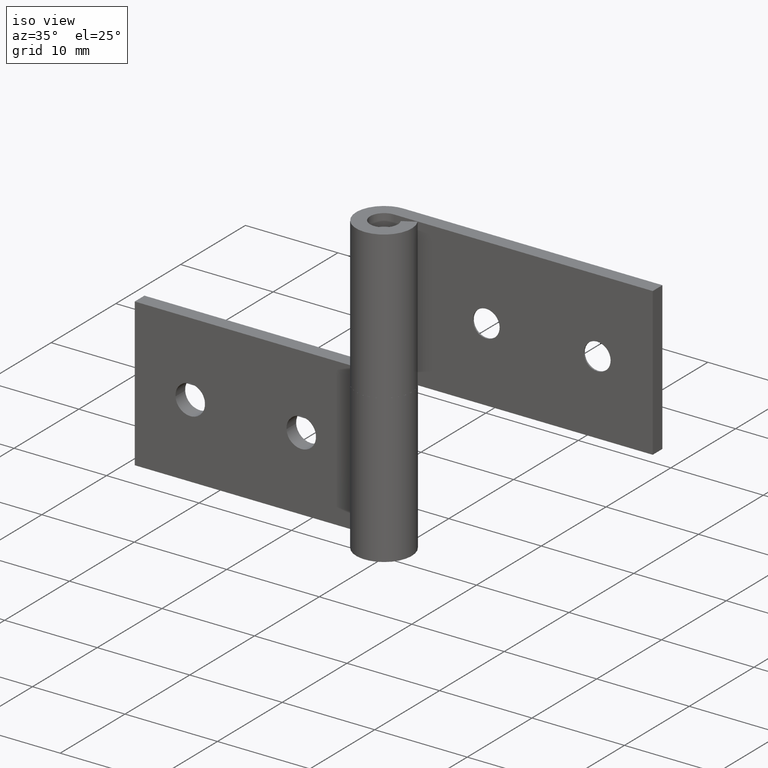
[diagram: clean part render]
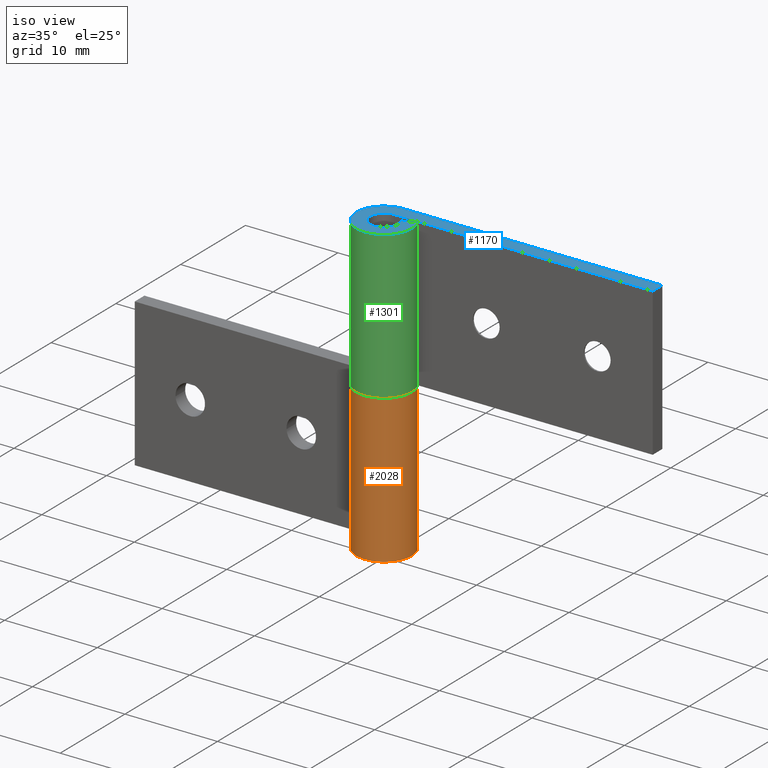
[diagram: same view with three faces highlighted in distinct colors, each labeled with its STEP entity id]
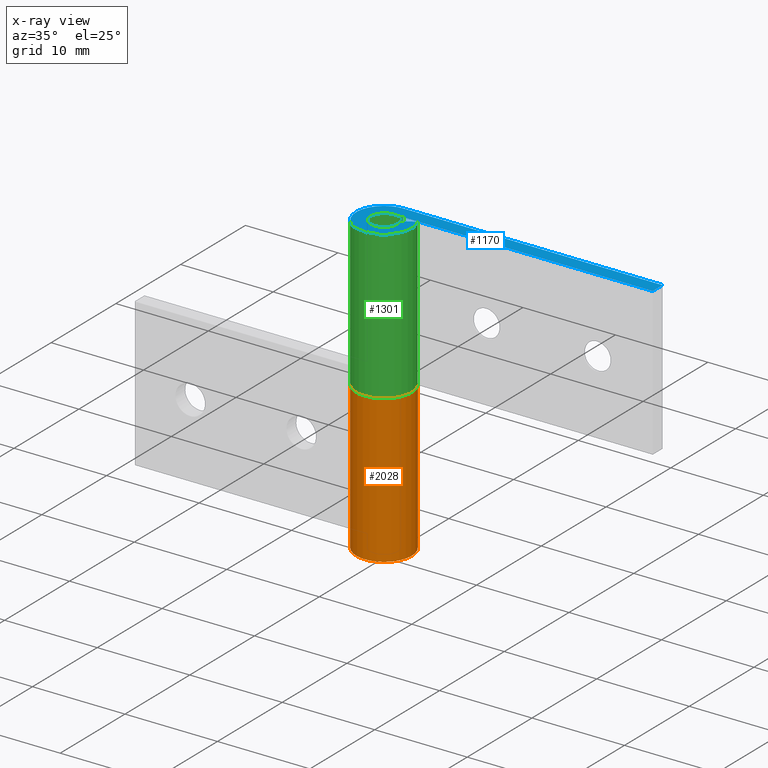
[diagram: x-ray of the same camera — body ghosted, the three highlighted faces saturated]
A machine part, iso view with three faces highlighted in distinct colors.
The next image is the same camera in x-ray (body ghosted, the three faces saturated) — at least one of them is partly hidden behind the body in this view.
Their STEP definitions:

[orange] entity #2028 — the highlighted face is a freeform B-spline surface patch.
#1851=CARTESIAN_POINT('',(-2.626309197333780,1.450000000000000,16.0));
#1852=VERTEX_POINT('',#1851);
#1858=CARTESIAN_POINT('',(1.836910E-016,3.0,16.0));
#1859=VERTEX_POINT('',#1858);
#1860=CARTESIAN_POINT('',(0.0,3.0,16.0));
#1861=CARTESIAN_POINT('',(2.290598042424808,3.0,16.000000000000004));
#1862=CARTESIAN_POINT('',(2.894028888043301,0.790314364775724,16.0));
#1863=CARTESIAN_POINT('',(3.497459733661794,-1.419371270448550,16.000000000000004));
#1864=CARTESIAN_POINT('',(1.524795068197693,-2.583602136552761,16.0));
#1865=CARTESIAN_POINT('',(-0.447869597266408,-3.747833002656974,16.000000000000004));
#1866=CARTESIAN_POINT('',(-2.090650590886088,-2.151552952364328,16.0));
#1867=CARTESIAN_POINT('',(-3.733431584505768,-0.555272902071681,16.000000000000004));
#1868=CARTESIAN_POINT('',(-2.626309197333781,1.449999999999996,16.0));
#1876=(BOUNDED_CURVE()B_SPLINE_CURVE(2,(#1860,#1861,#1862,#1863,#1864,#1865,#1866,#1867,#1868),.UNSPECIFIED.,.F.,.U.)B_SPLINE_CURVE_WITH_KNOTS((3,2,2,2,3),(0.0,0.250000000000000,0.500000000000000,0.750000000000000,1.0),.UNSPECIFIED.)CURVE()GEOMETRIC_REPRESENTATION_ITEM()RATIONAL_B_SPLINE_CURVE((1.0,0.794807562115481,1.0,0.794807562115481,1.0,0.794807562115481,1.0,0.794807562115481,1.0))REPRESENTATION_ITEM(''));
#1877=EDGE_CURVE('',#1859,#1852,#1876,.T.);
#1915=CARTESIAN_POINT('',(1.836910E-016,3.0,0.0));
#1916=VERTEX_POINT('',#1915);
#1922=CARTESIAN_POINT('',(-2.626309197333780,1.450000000000000,0.0));
#1923=VERTEX_POINT('',#1922);
#1924=CARTESIAN_POINT('',(0.0,3.0,0.0));
#1925=CARTESIAN_POINT('',(2.290598042424808,3.0,0.0));
#1926=CARTESIAN_POINT('',(2.894028888043301,0.790314364775724,0.0));
#1927=CARTESIAN_POINT('',(3.497459733661794,-1.419371270448550,0.0));
#1928=CARTESIAN_POINT('',(1.524795068197693,-2.583602136552761,0.0));
#1929=CARTESIAN_POINT('',(-0.447869597266408,-3.747833002656974,0.0));
#1930=CARTESIAN_POINT('',(-2.090650590886088,-2.151552952364328,0.0));
#1931=CARTESIAN_POINT('',(-3.733431584505768,-0.555272902071681,0.0));
#1932=CARTESIAN_POINT('',(-2.626309197333781,1.449999999999996,0.0));
#1940=(BOUNDED_CURVE()B_SPLINE_CURVE(2,(#1924,#1925,#1926,#1927,#1928,#1929,#1930,#1931,#1932),.UNSPECIFIED.,.F.,.U.)B_SPLINE_CURVE_WITH_KNOTS((3,2,2,2,3),(0.0,0.250000000000000,0.500000000000000,0.750000000000000,1.0),.UNSPECIFIED.)CURVE()GEOMETRIC_REPRESENTATION_ITEM()RATIONAL_B_SPLINE_CURVE((1.0,0.794807562115481,1.0,0.794807562115481,1.0,0.794807562115481,1.0,0.794807562115481,1.0))REPRESENTATION_ITEM(''));
#1941=EDGE_CURVE('',#1916,#1923,#1940,.T.);
#1992=CARTESIAN_POINT('',(-0.078530844923624,2.998971974926671,-0.400000000000000));
#1993=CARTESIAN_POINT('',(-0.078530844923624,2.998971974926671,16.410000000000000));
#1994=CARTESIAN_POINT('',(3.559513073218585,3.094237507632406,-0.400000000000001));
#1995=CARTESIAN_POINT('',(3.559513073218585,3.094237507632406,16.410000000000004));
#1996=CARTESIAN_POINT('',(2.958856804611695,-0.495142817582027,-0.400000000000000));
#1997=CARTESIAN_POINT('',(2.958856804611695,-0.495142817582027,16.410000000000000));
#1998=CARTESIAN_POINT('',(2.358200536004806,-4.084523142796462,-0.400000000000001));
#1999=CARTESIAN_POINT('',(2.358200536004806,-4.084523142796462,16.410000000000004));
#2000=CARTESIAN_POINT('',(-1.050622143778395,-2.810016567745195,-0.400000000000000));
#2001=CARTESIAN_POINT('',(-1.050622143778395,-2.810016567745195,16.410000000000000));
#2002=CARTESIAN_POINT('',(-4.459444823561595,-1.535509992693931,-0.400000000000001));
#2003=CARTESIAN_POINT('',(-4.459444823561595,-1.535509992693931,16.410000000000004));
#2004=CARTESIAN_POINT('',(-2.557920493062281,1.567495694147838,-0.400000000000000));
#2005=CARTESIAN_POINT('',(-2.557920493062281,1.567495694147838,16.410000000000000));
#2013=(BOUNDED_SURFACE()B_SPLINE_SURFACE(1,2,((#1992,#1994,#1996,#1998,#2000,#2002,#2004),(#1993,#1995,#1997,#1999,#2001,#2003,#2005)),.UNSPECIFIED.,.F.,.F.,.U.)B_SPLINE_SURFACE_WITH_KNOTS((2,2),(3,2,2,3),(0.0,16.809999999999999),(0.0,5.659567425254652,11.319134850509300,16.978702275763961),.UNSPECIFIED.)GEOMETRIC_REPRESENTATION_ITEM()RATIONAL_B_SPLINE_SURFACE(((1.0,0.636078220277764,1.0,0.636078220277764,1.0,0.636078220277764,1.0),(1.0,0.636078220277764,1.0,0.636078220277764,1.0,0.636078220277764,1.0)))REPRESENTATION_ITEM('')SURFACE());
#2014=ORIENTED_EDGE('',*,*,#1877,.T.);
#2015=CARTESIAN_POINT('',(-2.626309197333780,1.450000000000000,0.0));
#2016=CARTESIAN_POINT('',(-2.626309197333780,1.450000000000000,16.0));
#2017=QUASI_UNIFORM_CURVE('',1,(#2015,#2016),.UNSPECIFIED.,.F.,.U.);
#2018=EDGE_CURVE('',#1923,#1852,#2017,.T.);
#2019=ORIENTED_EDGE('',*,*,#2018,.F.);
#2020=ORIENTED_EDGE('',*,*,#1941,.F.);
#2021=CARTESIAN_POINT('',(1.836910E-016,3.0,0.0));
#2022=CARTESIAN_POINT('',(1.836910E-016,3.0,16.0));
#2023=QUASI_UNIFORM_CURVE('',1,(#2021,#2022),.UNSPECIFIED.,.F.,.U.);
#2024=EDGE_CURVE('',#1916,#1859,#2023,.T.);
#2025=ORIENTED_EDGE('',*,*,#2024,.T.);
#2026=EDGE_LOOP('',(#2014,#2019,#2020,#2025));
#2027=FACE_OUTER_BOUND('',#2026,.T.);
#2028=ADVANCED_FACE('',(#2027),#2013,.T.);

[blue] entity #1170 — the highlighted face is a freeform B-spline surface patch.
#1093=CARTESIAN_POINT('',(-4.548398161596569,-3.299492257854450,32.0));
#1094=CARTESIAN_POINT('',(29.548454365928890,-3.299492257854450,32.0));
#1095=CARTESIAN_POINT('',(-4.548398161596569,3.299690266790416,32.0));
#1096=CARTESIAN_POINT('',(29.548454365928890,3.299690266790416,32.0));
#1097=B_SPLINE_SURFACE_WITH_KNOTS('',1,1,((#1093,#1095),(#1094,#1096)),.UNSPECIFIED.,.F.,.F.,.U.,(2,2),(2,2),(0.0,34.096852527525463),(0.0,6.599182524644866),.UNSPECIFIED.);
#1098=CARTESIAN_POINT('',(1.313154598666890,0.725000000000000,32.0));
#1099=VERTEX_POINT('',#1098);
#1100=CARTESIAN_POINT('',(0.0,1.500000000000000,32.0));
#1101=VERTEX_POINT('',#1100);
#1102=CARTESIAN_POINT('',(1.313154598666890,0.725000000000000,32.0));
#1103=CARTESIAN_POINT('',(1.866715792252885,-0.277636451035838,32.000000000000007));
#1104=CARTESIAN_POINT('',(1.045325295443045,-1.075776476182162,32.0));
#1105=CARTESIAN_POINT('',(0.223934798633207,-1.873916501328486,32.000000000000007));
#1106=CARTESIAN_POINT('',(-0.762397534098844,-1.291801068276382,32.0));
#1107=CARTESIAN_POINT('',(-1.748729866830896,-0.709685635224277,32.000000000000007));
#1108=CARTESIAN_POINT('',(-1.447014444021651,0.395157182387861,32.0));
#1109=CARTESIAN_POINT('',(-1.145299021212405,1.500000000000000,32.000000000000007));
#1110=CARTESIAN_POINT('',(0.0,1.500000000000000,32.0));
#1118=(BOUNDED_CURVE()B_SPLINE_CURVE(2,(#1102,#1103,#1104,#1105,#1106,#1107,#1108,#1109,#1110),.UNSPECIFIED.,.F.,.U.)B_SPLINE_CURVE_WITH_KNOTS((3,2,2,2,3),(0.0,0.250000000000000,0.500000000000000,0.750000000000000,1.0),.UNSPECIFIED.)CURVE()GEOMETRIC_REPRESENTATION_ITEM()RATIONAL_B_SPLINE_CURVE((1.0,0.794807562115481,1.0,0.794807562115481,1.0,0.794807562115481,1.0,0.794807562115481,1.0))REPRESENTATION_ITEM(''));
#1119=EDGE_CURVE('',#1099,#1101,#1118,.T.);
#1120=ORIENTED_EDGE('',*,*,#1119,.T.);
#1121=CARTESIAN_POINT('',(28.000008000000001,1.500000000000000,32.0));
#1122=VERTEX_POINT('',#1121);
#1123=CARTESIAN_POINT('',(0.0,1.500000000000000,32.0));
#1124=CARTESIAN_POINT('',(28.000008000000001,1.500000000000000,32.0));
#1125=QUASI_UNIFORM_CURVE('',1,(#1123,#1124),.UNSPECIFIED.,.F.,.U.);
#1126=EDGE_CURVE('',#1101,#1122,#1125,.T.);
#1127=ORIENTED_EDGE('',*,*,#1126,.T.);
#1128=CARTESIAN_POINT('',(28.000008000000001,3.0,32.0));
#1129=VERTEX_POINT('',#1128);
#1130=CARTESIAN_POINT('',(28.000008000000001,1.500000000000000,32.0));
#1131=CARTESIAN_POINT('',(28.000008000000001,3.0,32.0));
#1132=QUASI_UNIFORM_CURVE('',1,(#1130,#1131),.UNSPECIFIED.,.F.,.U.);
#1133=EDGE_CURVE('',#1122,#1129,#1132,.T.);
#1134=ORIENTED_EDGE('',*,*,#1133,.T.);
#1135=CARTESIAN_POINT('',(3.552714E-015,3.0,32.0));
#1136=VERTEX_POINT('',#1135);
#1137=CARTESIAN_POINT('',(28.000008000000001,3.0,32.0));
#1138=CARTESIAN_POINT('',(3.552714E-015,3.0,32.0));
#1139=QUASI_UNIFORM_CURVE('',1,(#1137,#1138),.UNSPECIFIED.,.F.,.U.);
#1140=EDGE_CURVE('',#1129,#1136,#1139,.T.);
#1141=ORIENTED_EDGE('',*,*,#1140,.T.);
#1142=CARTESIAN_POINT('',(2.626309197333775,1.450000000000000,32.0));
#1143=VERTEX_POINT('',#1142);
#1144=CARTESIAN_POINT('',(2.626309197333778,1.450000000000002,32.0));
#1145=CARTESIAN_POINT('',(3.733431584505770,-0.555272902071671,31.999999999999996));
#1146=CARTESIAN_POINT('',(2.090650590886093,-2.151552952364322,32.0));
#1147=CARTESIAN_POINT('',(0.447869597266412,-3.747833002656976,31.999999999999996));
#1148=CARTESIAN_POINT('',(-1.524795068197694,-2.583602136552761,32.0));
#1149=CARTESIAN_POINT('',(-3.497459733661796,-1.419371270448548,31.999999999999996));
#1150=CARTESIAN_POINT('',(-2.894028888043300,0.790314364775728,32.0));
#1151=CARTESIAN_POINT('',(-2.290598042424805,3.0,31.999999999999996));
#1152=CARTESIAN_POINT('',(0.0,3.0,32.0));
#1160=(BOUNDED_CURVE()B_SPLINE_CURVE(2,(#1144,#1145,#1146,#1147,#1148,#1149,#1150,#1151,#1152),.UNSPECIFIED.,.F.,.U.)B_SPLINE_CURVE_WITH_KNOTS((3,2,2,2,3),(0.0,0.250000000000000,0.500000000000000,0.750000000000000,1.0),.UNSPECIFIED.)CURVE()GEOMETRIC_REPRESENTATION_ITEM()RATIONAL_B_SPLINE_CURVE((1.0,0.794807562115481,1.0,0.794807562115481,1.0,0.794807562115481,1.0,0.794807562115481,1.0))REPRESENTATION_ITEM(''));
#1161=EDGE_CURVE('',#1143,#1136,#1160,.T.);
#1162=ORIENTED_EDGE('',*,*,#1161,.F.);
#1163=CARTESIAN_POINT('',(2.626309197333775,1.450000000000000,32.0));
#1164=CARTESIAN_POINT('',(1.313154598666890,0.725000000000000,32.0));
#1165=QUASI_UNIFORM_CURVE('',1,(#1163,#1164),.UNSPECIFIED.,.F.,.U.);
#1166=EDGE_CURVE('',#1143,#1099,#1165,.T.);
#1167=ORIENTED_EDGE('',*,*,#1166,.T.);
#1168=EDGE_LOOP('',(#1120,#1127,#1134,#1141,#1162,#1167));
#1169=FACE_OUTER_BOUND('',#1168,.T.);
#1170=ADVANCED_FACE('',(#1169),#1097,.T.);

[green] entity #1301 — the highlighted face is a freeform B-spline surface patch.
#1135=CARTESIAN_POINT('',(3.552714E-015,3.0,32.0));
#1136=VERTEX_POINT('',#1135);
#1142=CARTESIAN_POINT('',(2.626309197333775,1.450000000000000,32.0));
#1143=VERTEX_POINT('',#1142);
#1144=CARTESIAN_POINT('',(2.626309197333778,1.450000000000002,32.0));
#1145=CARTESIAN_POINT('',(3.733431584505770,-0.555272902071671,31.999999999999996));
#1146=CARTESIAN_POINT('',(2.090650590886093,-2.151552952364322,32.0));
#1147=CARTESIAN_POINT('',(0.447869597266412,-3.747833002656976,31.999999999999996));
#1148=CARTESIAN_POINT('',(-1.524795068197694,-2.583602136552761,32.0));
#1149=CARTESIAN_POINT('',(-3.497459733661796,-1.419371270448548,31.999999999999996));
#1150=CARTESIAN_POINT('',(-2.894028888043300,0.790314364775728,32.0));
#1151=CARTESIAN_POINT('',(-2.290598042424805,3.0,31.999999999999996));
#1152=CARTESIAN_POINT('',(0.0,3.0,32.0));
#1160=(BOUNDED_CURVE()B_SPLINE_CURVE(2,(#1144,#1145,#1146,#1147,#1148,#1149,#1150,#1151,#1152),.UNSPECIFIED.,.F.,.U.)B_SPLINE_CURVE_WITH_KNOTS((3,2,2,2,3),(0.0,0.250000000000000,0.500000000000000,0.750000000000000,1.0),.UNSPECIFIED.)CURVE()GEOMETRIC_REPRESENTATION_ITEM()RATIONAL_B_SPLINE_CURVE((1.0,0.794807562115481,1.0,0.794807562115481,1.0,0.794807562115481,1.0,0.794807562115481,1.0))REPRESENTATION_ITEM(''));
#1161=EDGE_CURVE('',#1143,#1136,#1160,.T.);
#1199=CARTESIAN_POINT('',(2.626309197333775,1.450000000000000,16.0));
#1200=VERTEX_POINT('',#1199);
#1206=CARTESIAN_POINT('',(3.552714E-015,3.0,16.0));
#1207=VERTEX_POINT('',#1206);
#1208=CARTESIAN_POINT('',(2.626309197333778,1.450000000000002,16.0));
#1209=CARTESIAN_POINT('',(3.733431584505770,-0.555272902071671,15.999999999999998));
#1210=CARTESIAN_POINT('',(2.090650590886093,-2.151552952364322,16.0));
#1211=CARTESIAN_POINT('',(0.447869597266412,-3.747833002656976,15.999999999999998));
#1212=CARTESIAN_POINT('',(-1.524795068197694,-2.583602136552761,16.0));
#1213=CARTESIAN_POINT('',(-3.497459733661796,-1.419371270448548,15.999999999999998));
#1214=CARTESIAN_POINT('',(-2.894028888043300,0.790314364775728,16.0));
#1215=CARTESIAN_POINT('',(-2.290598042424805,3.0,15.999999999999998));
#1216=CARTESIAN_POINT('',(0.0,3.0,16.0));
#1224=(BOUNDED_CURVE()B_SPLINE_CURVE(2,(#1208,#1209,#1210,#1211,#1212,#1213,#1214,#1215,#1216),.UNSPECIFIED.,.F.,.U.)B_SPLINE_CURVE_WITH_KNOTS((3,2,2,2,3),(0.0,0.250000000000000,0.500000000000000,0.750000000000000,1.0),.UNSPECIFIED.)CURVE()GEOMETRIC_REPRESENTATION_ITEM()RATIONAL_B_SPLINE_CURVE((1.0,0.794807562115481,1.0,0.794807562115481,1.0,0.794807562115481,1.0,0.794807562115481,1.0))REPRESENTATION_ITEM(''));
#1225=EDGE_CURVE('',#1200,#1207,#1224,.T.);
#1255=CARTESIAN_POINT('',(2.626309197333775,1.450000000000000,16.0));
#1256=CARTESIAN_POINT('',(2.626309197333775,1.450000000000000,32.0));
#1257=QUASI_UNIFORM_CURVE('',1,(#1255,#1256),.UNSPECIFIED.,.F.,.U.);
#1258=EDGE_CURVE('',#1200,#1143,#1257,.T.);
#1269=CARTESIAN_POINT('',(2.584887481324578,1.522615088882109,15.600000000000000));
#1270=CARTESIAN_POINT('',(2.584887481324578,1.522615088882109,32.409999999999997));
#1271=CARTESIAN_POINT('',(4.454017153952613,-1.650537421576558,15.599999999999998));
#1272=CARTESIAN_POINT('',(4.454017153952613,-1.650537421576558,32.409999999999989));
#1273=CARTESIAN_POINT('',(0.968449136630483,-2.839384840024274,15.600000000000000));
#1274=CARTESIAN_POINT('',(0.968449136630483,-2.839384840024274,32.409999999999997));
#1275=CARTESIAN_POINT('',(-2.517118880691648,-4.028232258471989,15.599999999999998));
#1276=CARTESIAN_POINT('',(-2.517118880691648,-4.028232258471989,32.409999999999989));
#1277=CARTESIAN_POINT('',(-2.976562347997528,-0.374268070349907,15.600000000000000));
#1278=CARTESIAN_POINT('',(-2.976562347997528,-0.374268070349907,32.409999999999997));
#1279=CARTESIAN_POINT('',(-3.436005815303408,3.279696117772175,15.599999999999998));
#1280=CARTESIAN_POINT('',(-3.436005815303408,3.279696117772175,32.409999999999989));
#1281=CARTESIAN_POINT('',(0.235377287183540,2.990752001199383,15.600000000000000));
#1282=CARTESIAN_POINT('',(0.235377287183540,2.990752001199383,32.409999999999997));
#1290=(BOUNDED_SURFACE()B_SPLINE_SURFACE(1,2,((#1269,#1271,#1273,#1275,#1277,#1279,#1281),(#1270,#1272,#1274,#1276,#1278,#1280,#1282)),.UNSPECIFIED.,.F.,.F.,.U.)B_SPLINE_SURFACE_WITH_KNOTS((2,2),(3,2,2,3),(0.0,16.809999999999999),(0.0,5.702297214197751,11.404594428395500,17.106891642593251),.UNSPECIFIED.)GEOMETRIC_REPRESENTATION_ITEM()RATIONAL_B_SPLINE_SURFACE(((1.0,0.631578351302498,1.0,0.631578351302498,1.0,0.631578351302498,1.0),(1.0,0.631578351302498,1.0,0.631578351302498,1.0,0.631578351302498,1.0)))REPRESENTATION_ITEM('')SURFACE());
#1291=ORIENTED_EDGE('',*,*,#1161,.T.);
#1292=CARTESIAN_POINT('',(3.552714E-015,3.0,16.0));
#1293=CARTESIAN_POINT('',(3.552714E-015,3.0,32.0));
#1294=QUASI_UNIFORM_CURVE('',1,(#1292,#1293),.UNSPECIFIED.,.F.,.U.);
#1295=EDGE_CURVE('',#1207,#1136,#1294,.T.);
#1296=ORIENTED_EDGE('',*,*,#1295,.F.);
#1297=ORIENTED_EDGE('',*,*,#1225,.F.);
#1298=ORIENTED_EDGE('',*,*,#1258,.T.);
#1299=EDGE_LOOP('',(#1291,#1296,#1297,#1298));
#1300=FACE_OUTER_BOUND('',#1299,.T.);
#1301=ADVANCED_FACE('',(#1300),#1290,.T.);